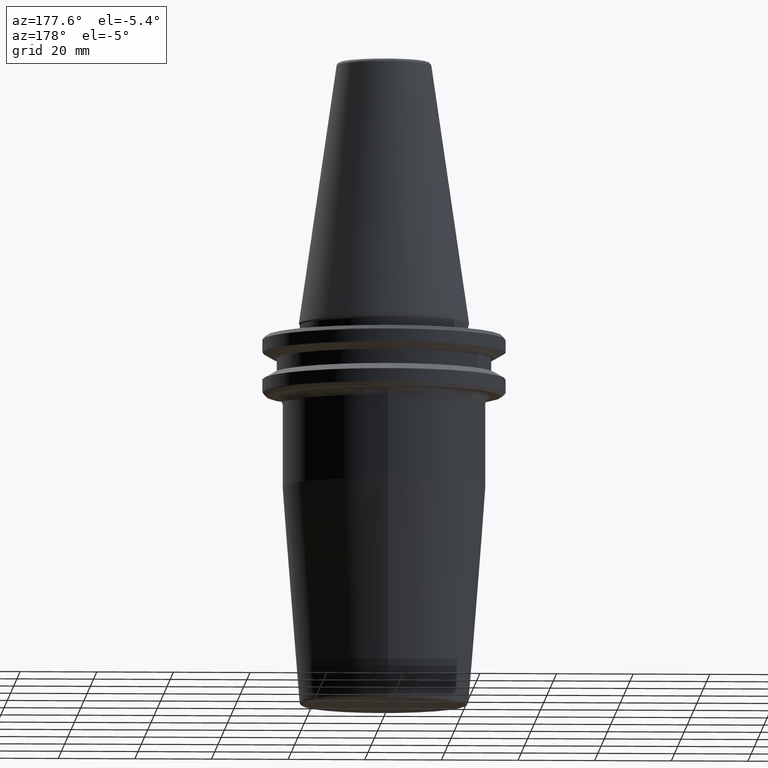
[diagram: clean part render]
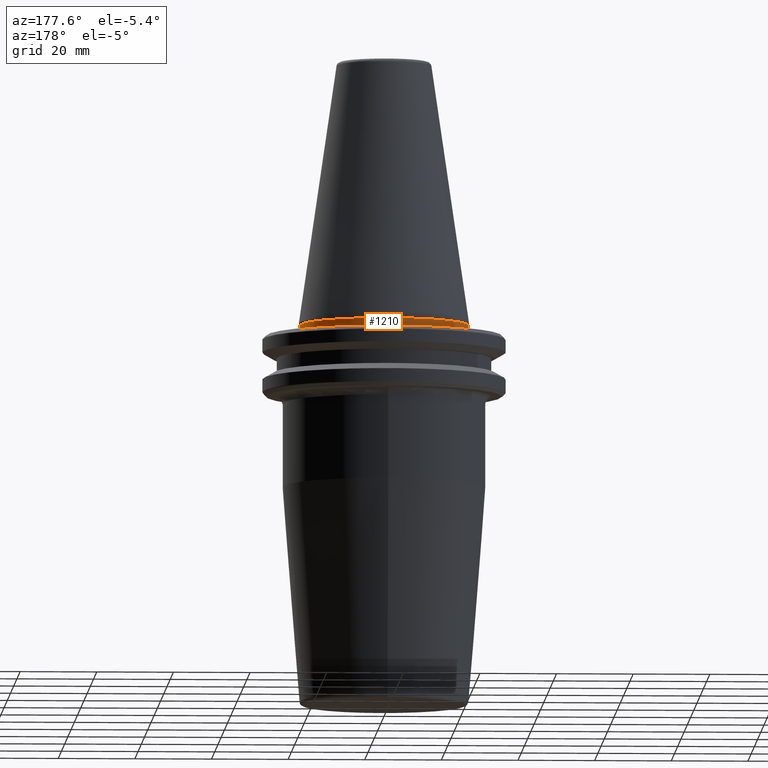
[diagram: same view with one face highlighted and labeled with its STEP entity id]
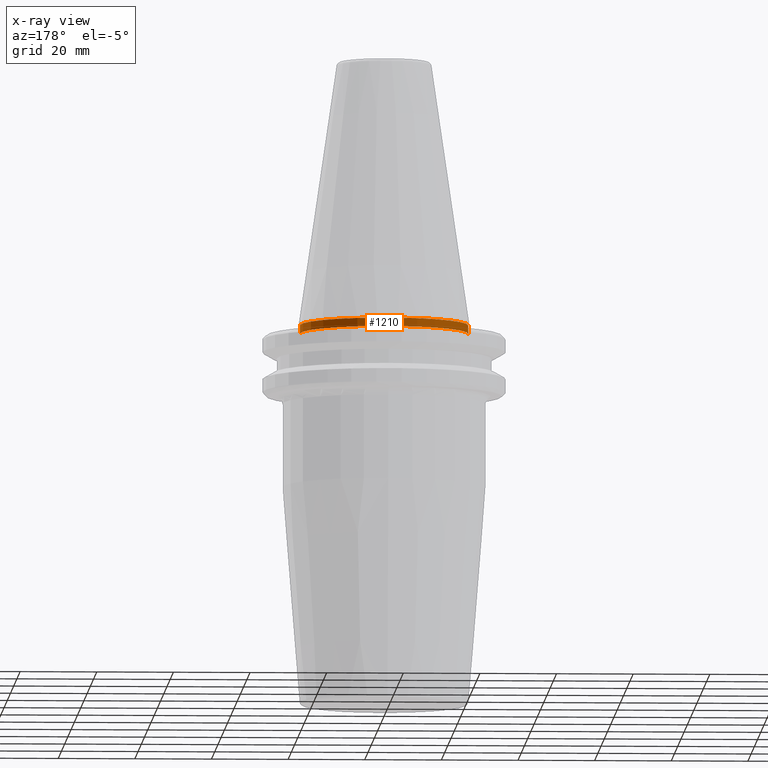
[diagram: x-ray of the same camera — body ghosted, the highlighted face saturated]
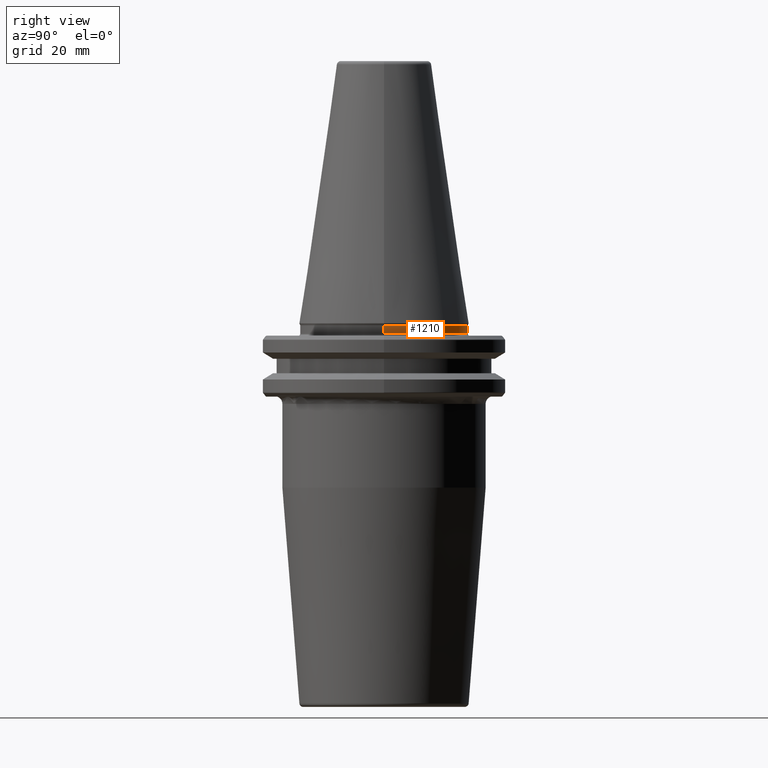
[diagram: same view with one face highlighted and labeled with its STEP entity id]
A machine part, auxiliary view. The second image highlights one B-rep face of the part: STEP entity #1210.
The next image is the same camera in x-ray: the body ghosted, the highlighted face saturated — about 1% of this face is hidden behind the body in this view.
A second angle (right view) of the same face is appended — the face is thin or edge-on in the first view.
In plain terms, the highlighted cylindrical surface (partial cylindrical patch) has radius 22 mm, axis along (-0, -0, 1).
Its self-contained STEP definition (entity closure, byte-faithful):
#29 = CARTESIAN_POINT ( 'NONE',  ( 0.0000000000000000000, 0.0000000000000000000, -0.4825140571146635500 ) ) ;
#85 = DIRECTION ( 'NONE',  ( 1.000000000000000000, 0.0000000000000000000, 0.0000000000000000000 ) ) ;
#94 = EDGE_CURVE ( 'NONE', #916, #643, #256, .T. ) ;
#119 = EDGE_CURVE ( 'NONE', #479, #916, #223, .T. ) ;
#170 = CARTESIAN_POINT ( 'NONE',  ( 0.0000000000000000000, 0.0000000000000000000, 113.5216080541959500 ) ) ;
#180 = CARTESIAN_POINT ( 'NONE',  ( 0.0000000000000000000, 0.0000000000000000000, -2.699999999999994000 ) ) ;
#210 = VECTOR ( 'NONE', #633, 1000.000000000000000 ) ;
#223 = LINE ( 'NONE', #454, #745 ) ;
#256 = CIRCLE ( 'NONE', #786, 22.00000000000000000 ) ;
#277 = DIRECTION ( 'NONE',  ( 1.000000000000000000, 0.0000000000000000000, 0.0000000000000000000 ) ) ;
#283 = DIRECTION ( 'NONE',  ( -0.0000000000000000000, -0.0000000000000000000, 1.000000000000000000 ) ) ;
#323 = VERTEX_POINT ( 'NONE', #437 ) ;
#391 = FACE_OUTER_BOUND ( 'NONE', #424, .T. ) ;
#424 = EDGE_LOOP ( 'NONE', ( #1219, #881, #559, #1093 ) ) ;
#437 = CARTESIAN_POINT ( 'NONE',  ( -22.00000000000000400, 2.724839128102861000E-015, -2.699999999999994000 ) ) ;
#454 = CARTESIAN_POINT ( 'NONE',  ( 22.00000000000000000, 0.0000000000000000000, 113.5216080541959500 ) ) ;
#455 = CARTESIAN_POINT ( 'NONE',  ( -22.00000000000000000, 2.694222958124176800E-015, -0.4825140571146635500 ) ) ;
#461 = DIRECTION ( 'NONE',  ( -0.0000000000000000000, -0.0000000000000000000, 1.000000000000000000 ) ) ;
#479 = VERTEX_POINT ( 'NONE', #720 ) ;
#559 = ORIENTED_EDGE ( 'NONE', *, *, #94, .F. ) ;
#596 = CIRCLE ( 'NONE', #794, 22.00000000000000400 ) ;
#607 = EDGE_CURVE ( 'NONE', #479, #323, #596, .T. ) ;
#619 = DIRECTION ( 'NONE',  ( -0.0000000000000000000, -0.0000000000000000000, 1.000000000000000000 ) ) ;
#621 = CYLINDRICAL_SURFACE ( 'NONE', #1137, 22.00000000000000000 ) ;
#633 = DIRECTION ( 'NONE',  ( -0.0000000000000000000, -0.0000000000000000000, 1.000000000000000000 ) ) ;
#643 = VERTEX_POINT ( 'NONE', #455 ) ;
#659 = CARTESIAN_POINT ( 'NONE',  ( 22.00000000000000000, 0.0000000000000000000, -0.4825140571146635500 ) ) ;
#720 = CARTESIAN_POINT ( 'NONE',  ( 22.00000000000000400, 0.0000000000000000000, -2.699999999999994000 ) ) ;
#745 = VECTOR ( 'NONE', #1130, 1000.000000000000000 ) ;
#786 = AXIS2_PLACEMENT_3D ( 'NONE', #29, #619, #1196 ) ;
#794 = AXIS2_PLACEMENT_3D ( 'NONE', #180, #461, #277 ) ;
#881 = ORIENTED_EDGE ( 'NONE', *, *, #961, .T. ) ;
#916 = VERTEX_POINT ( 'NONE', #659 ) ;
#961 = EDGE_CURVE ( 'NONE', #323, #643, #1012, .T. ) ;
#975 = CARTESIAN_POINT ( 'NONE',  ( -22.00000000000000000, 2.694222958124176800E-015, 113.5216080541959500 ) ) ;
#1012 = LINE ( 'NONE', #975, #210 ) ;
#1093 = ORIENTED_EDGE ( 'NONE', *, *, #119, .F. ) ;
#1130 = DIRECTION ( 'NONE',  ( -0.0000000000000000000, -0.0000000000000000000, 1.000000000000000000 ) ) ;
#1137 = AXIS2_PLACEMENT_3D ( 'NONE', #170, #283, #85 ) ;
#1196 = DIRECTION ( 'NONE',  ( 1.000000000000000000, 0.0000000000000000000, 0.0000000000000000000 ) ) ;
#1210 = ADVANCED_FACE ( 'NONE', ( #391 ), #621, .T. ) ;
#1219 = ORIENTED_EDGE ( 'NONE', *, *, #607, .T. ) ;